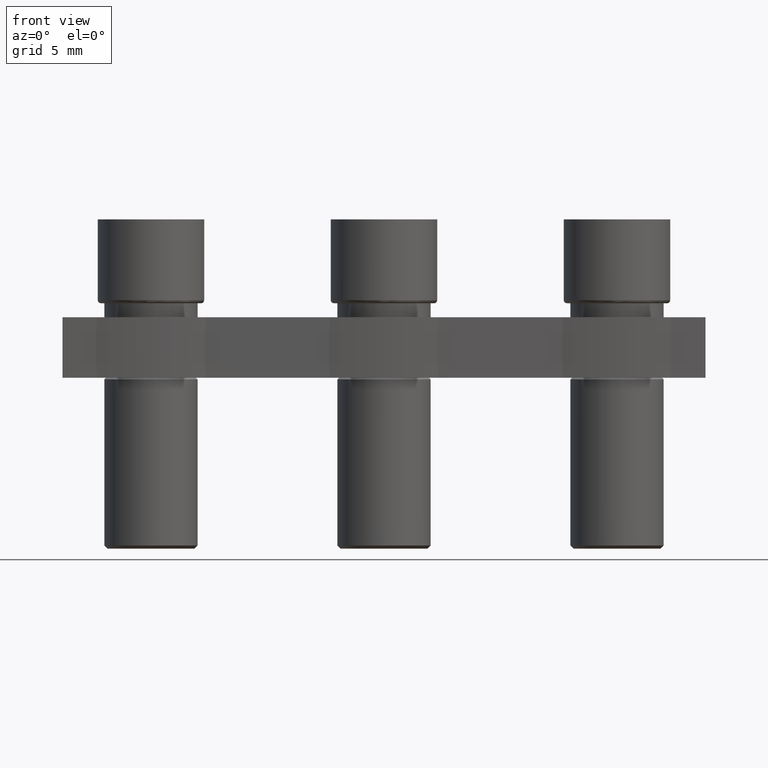
[diagram: clean part render]
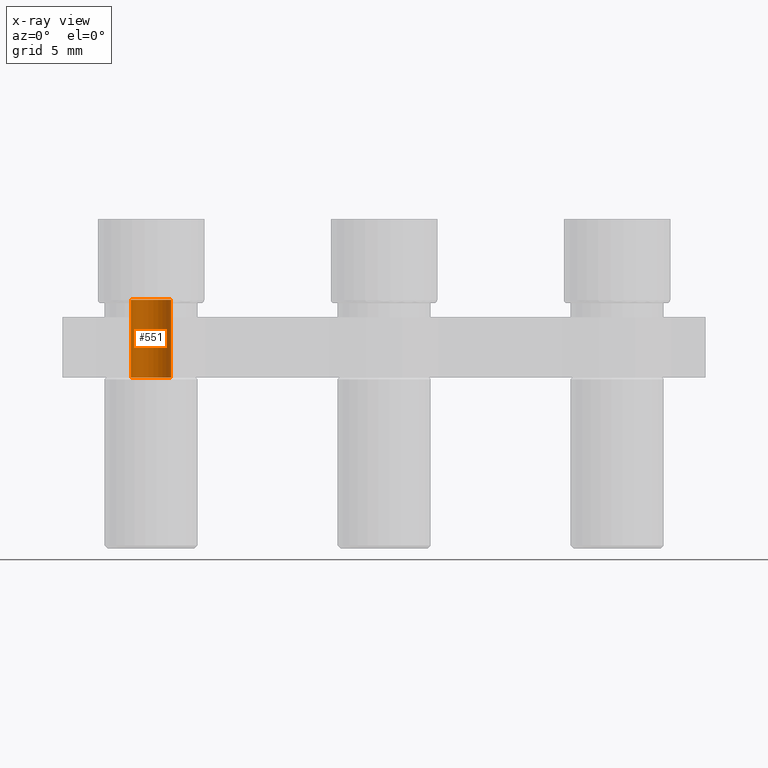
[diagram: x-ray — body ghosted, one internal face saturated and labeled with its STEP entity id]
A machine part, front view, then the same camera in x-ray: the body is ghosted and one INTERNAL B-rep face — a face not visible from any outside direction — is saturated and labeled: STEP entity #551.
In plain terms, the highlighted cylindrical surface (edge-blend (fillet) strip) has radius 1.3 mm, axis along (0, 0, -1).
Its self-contained STEP definition (entity closure, byte-faithful):
#371 = EDGE_CURVE ( 'NONE', #4354, #4360, #2036, .T. ) ;
#379 = EDGE_CURVE ( 'NONE', #4354, #4395, #4825, .T. ) ;
#418 = EDGE_CURVE ( 'NONE', #4370, #4360, #4855, .T. ) ;
#448 = EDGE_CURVE ( 'NONE', #4395, #4370, #2796, .T. ) ;
#551 = ADVANCED_FACE ( 'NONE', ( #3554 ), #3561, .T. ) ;
#812 = EDGE_LOOP ( 'NONE', ( #1294, #1321, #1280, #1293 ) ) ;
#1280 = ORIENTED_EDGE ( 'NONE', *, *, #418, .T. ) ;
#1293 = ORIENTED_EDGE ( 'NONE', *, *, #371, .F. ) ;
#1294 = ORIENTED_EDGE ( 'NONE', *, *, #379, .T. ) ;
#1321 = ORIENTED_EDGE ( 'NONE', *, *, #448, .T. ) ;
#1997 = CARTESIAN_POINT ( 'NONE',  ( -1.300000000000000500, 0.0000000000000000000, -18.28430778516076700 ) ) ;
#2036 = LINE ( 'NONE', #1997, #4802 ) ;
#2076 = DIRECTION ( 'NONE',  ( 0.0000000000000000000, 0.0000000000000000000, -1.000000000000000000 ) ) ;
#2126 = DIRECTION ( 'NONE',  ( 0.0000000000000000000, 0.0000000000000000000, -1.000000000000000000 ) ) ;
#2142 = CARTESIAN_POINT ( 'NONE',  ( 0.0000000000000000000, 0.0000000000000000000, 0.2156922148392366500 ) ) ;
#2144 = DIRECTION ( 'NONE',  ( -1.000000000000000000, 0.0000000000000000000, 0.0000000000000000000 ) ) ;
#2367 = CARTESIAN_POINT ( 'NONE',  ( 0.0000000000000000000, 0.0000000000000000000, -4.800000000000002500 ) ) ;
#2368 = DIRECTION ( 'NONE',  ( -0.0000000000000000000, 0.0000000000000000000, 1.000000000000000000 ) ) ;
#2374 = DIRECTION ( 'NONE',  ( 1.000000000000000000, 0.0000000000000000000, 0.0000000000000000000 ) ) ;
#2791 = CARTESIAN_POINT ( 'NONE',  ( 1.300000000000000500, 1.592040838891559800E-016, -18.28430778516076700 ) ) ;
#2796 = LINE ( 'NONE', #2791, #4900 ) ;
#2802 = DIRECTION ( 'NONE',  ( 0.0000000000000000000, 0.0000000000000000000, -1.000000000000000000 ) ) ;
#3524 = CARTESIAN_POINT ( 'NONE',  ( 0.0000000000000000000, 0.0000000000000000000, -18.28430778516076700 ) ) ;
#3545 = DIRECTION ( 'NONE',  ( 0.0000000000000000000, 0.0000000000000000000, -1.000000000000000000 ) ) ;
#3546 = DIRECTION ( 'NONE',  ( -1.000000000000000000, 0.0000000000000000000, 0.0000000000000000000 ) ) ;
#3554 = FACE_OUTER_BOUND ( 'NONE', #812, .T. ) ;
#3561 = CYLINDRICAL_SURFACE ( 'NONE', #5003, 1.300000000000000500 ) ;
#4354 = VERTEX_POINT ( 'NONE', #4684 ) ;
#4360 = VERTEX_POINT ( 'NONE', #4678 ) ;
#4370 = VERTEX_POINT ( 'NONE', #4692 ) ;
#4395 = VERTEX_POINT ( 'NONE', #4721 ) ;
#4678 = CARTESIAN_POINT ( 'NONE',  ( -1.300000000000000500, 0.0000000000000000000, -4.800000000000002500 ) ) ;
#4684 = CARTESIAN_POINT ( 'NONE',  ( -1.300000000000000500, 0.0000000000000000000, 0.2156922148392366500 ) ) ;
#4692 = CARTESIAN_POINT ( 'NONE',  ( 1.300000000000000500, 1.592040838891559800E-016, -4.800000000000002500 ) ) ;
#4721 = CARTESIAN_POINT ( 'NONE',  ( 1.300000000000000500, 1.592040838891559800E-016, 0.2156922148392366500 ) ) ;
#4802 = VECTOR ( 'NONE', #2076, 1000.000000000000000 ) ;
#4825 = CIRCLE ( 'NONE', #4827, 1.300000000000000500 ) ;
#4827 = AXIS2_PLACEMENT_3D ( 'NONE', #2142, #2126, #2144 ) ;
#4855 = CIRCLE ( 'NONE', #4884, 1.300000000000000500 ) ;
#4884 = AXIS2_PLACEMENT_3D ( 'NONE', #2367, #2368, #2374 ) ;
#4900 = VECTOR ( 'NONE', #2802, 1000.000000000000000 ) ;
#5003 = AXIS2_PLACEMENT_3D ( 'NONE', #3524, #3545, #3546 ) ;